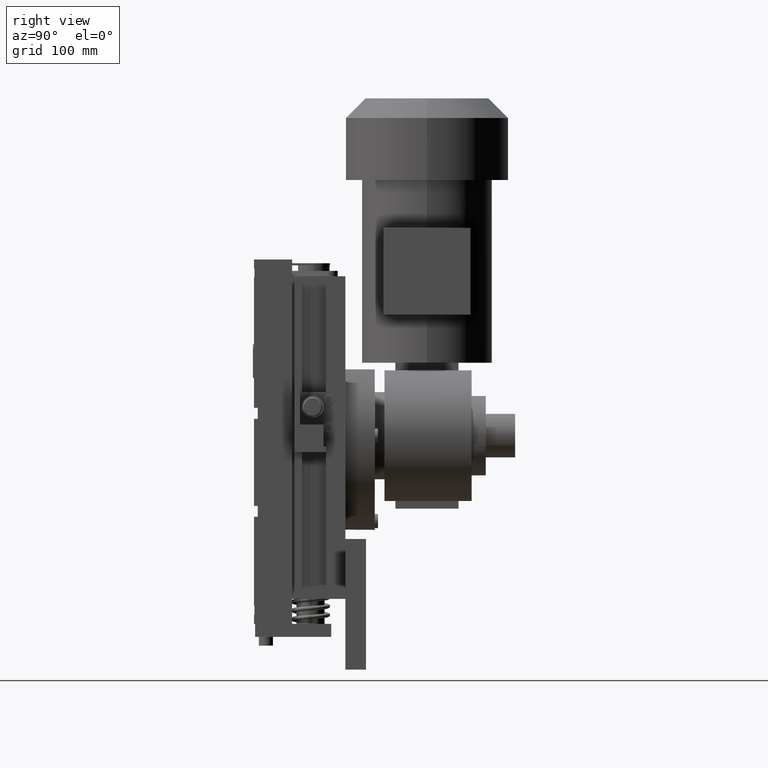
[diagram: clean part render]
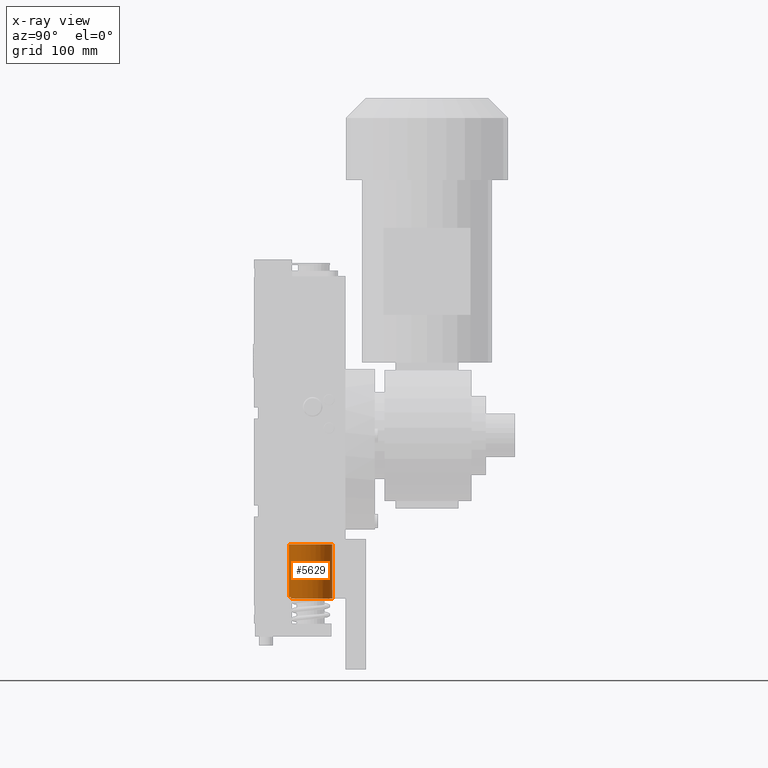
[diagram: x-ray — body ghosted, one internal face saturated and labeled with its STEP entity id]
A machine part, right view, then the same camera in x-ray: the body is ghosted and one INTERNAL B-rep face — a face not visible from any outside direction — is saturated and labeled: STEP entity #5629.
In plain terms, the highlighted cylindrical surface (bore or boss wall) has radius 20 mm, axis along (0, 0, -1).
Its self-contained STEP definition (entity closure, byte-faithful):
#5629=ADVANCED_FACE('',(#11715,#11716),#11717,.F.);
#11715=FACE_OUTER_BOUND('',#20159,.T.);
#11716=FACE_OUTER_BOUND('',#20160,.T.);
#11717=CYLINDRICAL_SURFACE('',#20161,20.0000000000000);
#20159=EDGE_LOOP('',(#33735));
#20160=EDGE_LOOP('',(#33736,#33737,#33738,#33739));
#20161=AXIS2_PLACEMENT_3D('',#33740,#33741,#33742);
#33735=ORIENTED_EDGE('',*,*,#51716,.T.);
#33736=ORIENTED_EDGE('',*,*,#51717,.T.);
#33737=ORIENTED_EDGE('',*,*,#51718,.T.);
#33738=ORIENTED_EDGE('',*,*,#51719,.T.);
#33739=ORIENTED_EDGE('',*,*,#51720,.F.);
#33740=CARTESIAN_POINT('',(-133.000000000000,-12.5555555555518,-218.722222222289));
#33741=DIRECTION('',(0.000000000000000,0.000000000000000,-1.00000000000000));
#33742=DIRECTION('',(-1.00000000000000,0.000000000000000,0.000000000000000));
#51716=EDGE_CURVE('',#62336,#62336,#62337,.T.);
#51717=EDGE_CURVE('',#62338,#62339,#62340,.F.);
#51718=EDGE_CURVE('',#62339,#62341,#62342,.F.);
#51719=EDGE_CURVE('',#62341,#62343,#62344,.T.);
#51720=EDGE_CURVE('',#62338,#62343,#62345,.T.);
#62336=VERTEX_POINT('',#77326);
#62337=CIRCLE('',#77327,20.0000000000000);
#62338=VERTEX_POINT('',#77328);
#62339=VERTEX_POINT('',#77329);
#62340=LINE('',#77330,#77331);
#62341=VERTEX_POINT('',#77332);
#62342=CIRCLE('',#77333,20.0000000000000);
#62343=VERTEX_POINT('',#77334);
#62344=LINE('',#77335,#77336);
#62345=CIRCLE('',#77337,20.0000000000000);
#77326=CARTESIAN_POINT('',(-113.000000000000,-12.5555555555518,-218.722222222289));
#77327=AXIS2_PLACEMENT_3D('',#89119,#89120,#89121);
#77328=CARTESIAN_POINT('',(-124.282202112926,-30.5555555555556,-268.722222222289));
#77329=CARTESIAN_POINT('',(-124.282202112926,-30.5555555555556,-267.222222222222));
#77330=CARTESIAN_POINT('',(-124.282202112926,-30.5555555555556,-218.722222222289));
#77331=VECTOR('',#89122,1.00000000000000);
#77332=CARTESIAN_POINT('',(-141.717797887073,-30.5555555555556,-267.222222222222));
#77333=AXIS2_PLACEMENT_3D('',#89123,#89124,#89125);
#77334=CARTESIAN_POINT('',(-141.717797887073,-30.5555555555556,-268.722222222289));
#77335=CARTESIAN_POINT('',(-141.717797887073,-30.5555555555556,-218.722222222289));
#77336=VECTOR('',#89126,1.00000000000000);
#77337=AXIS2_PLACEMENT_3D('',#89127,#89128,#89129);
#89119=CARTESIAN_POINT('',(-133.000000000000,-12.5555555555518,-218.722222222289));
#89120=DIRECTION('',(0.000000000000000,0.000000000000000,1.00000000000000));
#89121=DIRECTION('',(1.00000000000000,0.000000000000000,0.000000000000000));
#89122=DIRECTION('',(0.000000000000000,0.000000000000000,-1.00000000000000));
#89123=CARTESIAN_POINT('',(-133.000000000000,-12.5555555555518,-267.222222222222));
#89124=DIRECTION('',(0.000000000000000,0.000000000000000,1.00000000000000));
#89125=DIRECTION('',(1.00000000000000,0.000000000000000,0.000000000000000));
#89126=DIRECTION('',(0.000000000000000,0.000000000000000,-1.00000000000000));
#89127=CARTESIAN_POINT('',(-133.000000000000,-12.5555555555518,-268.722222222289));
#89128=DIRECTION('',(0.000000000000000,0.000000000000000,1.00000000000000));
#89129=DIRECTION('',(1.00000000000000,0.000000000000000,0.000000000000000));